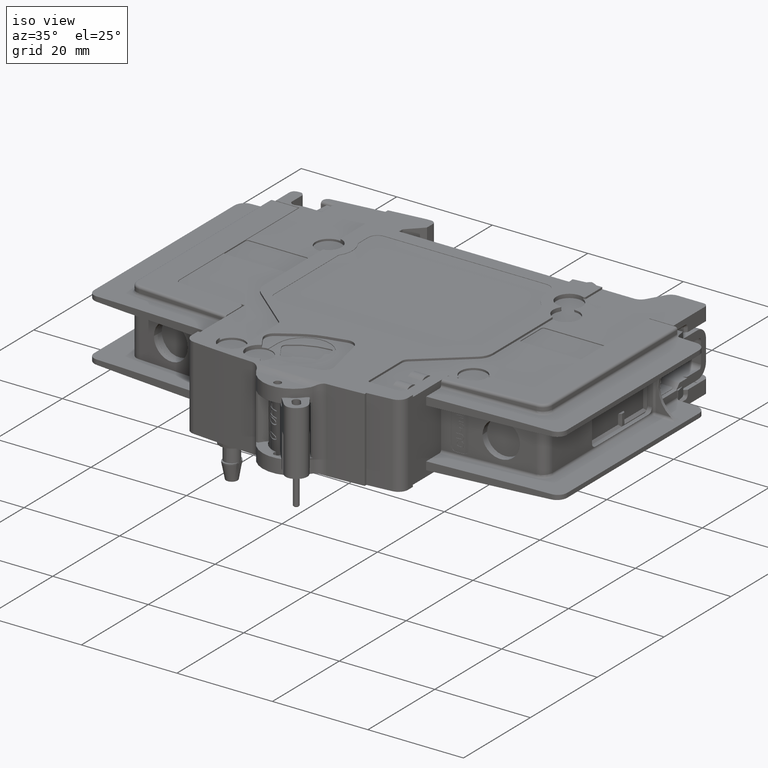
[diagram: clean part render]
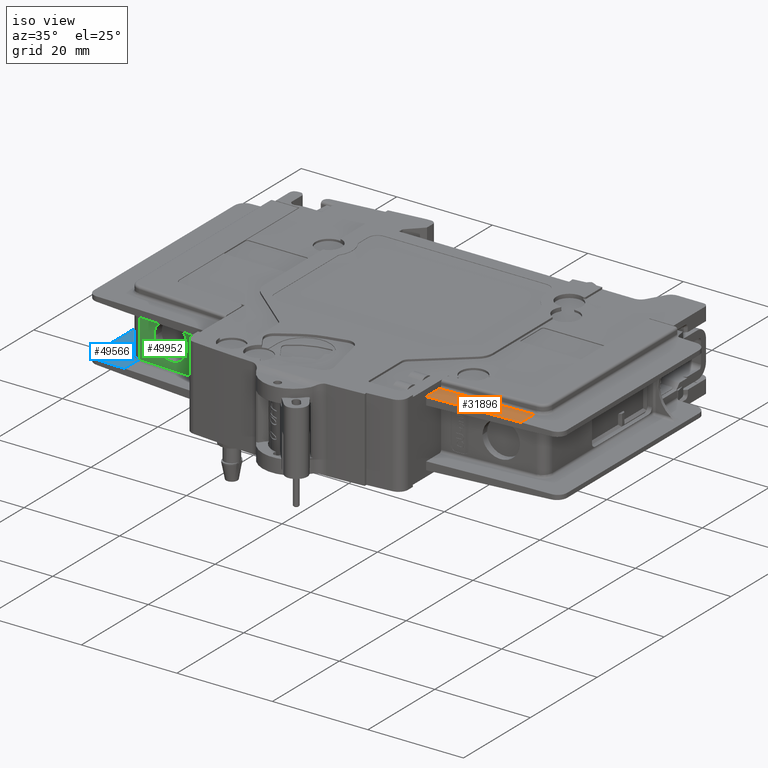
[diagram: same view with three faces highlighted in distinct colors, each labeled with its STEP entity id]
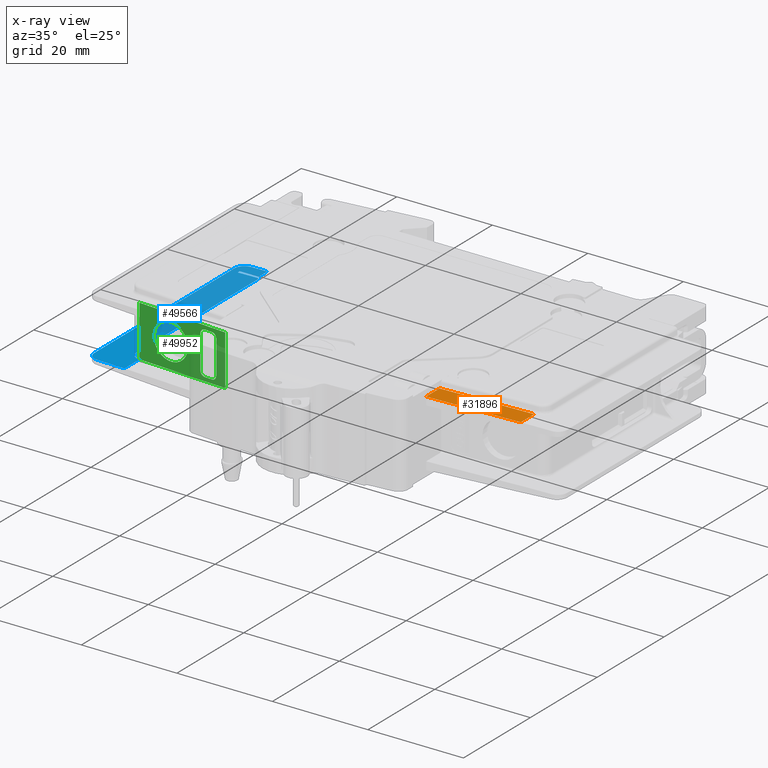
[diagram: x-ray of the same camera — body ghosted, the three highlighted faces saturated]
A machine part, iso view with three faces highlighted in distinct colors.
The next image is the same camera in x-ray (body ghosted, the three faces saturated) — at least one of them is partly hidden behind the body in this view.
Their STEP definitions:

[orange] entity #31896 — the highlighted planar face has unit normal (-0.0175, 0, -0.9998).
#2554=DIRECTION('',(0.E0,-1.E0,0.E0));
#2555=VECTOR('',#2554,4.010377787896E0);
#2556=CARTESIAN_POINT('',(2.26E1,-4.518065345338E1,6.969572727143E0));
#2557=LINE('',#2556,#2555);
#3039=DIRECTION('',(9.974128555599E-1,6.974590118078E-2,-1.740990615404E-2));
#3040=VECTOR('',#3039,1.894902386173E1);
#3041=CARTESIAN_POINT('',(2.26E1,-4.919103124128E1,6.969572727143E0));
#3042=LINE('',#3041,#3040);
#3051=CARTESIAN_POINT('',(2.26E1,-4.518065345338E1,6.969572727143E0));
#3071=DIRECTION('',(9.974122955988E-1,6.975391097545E-2,-1.740989637988E-2));
#3072=VECTOR('',#3071,1.894903449997E1);
#3073=CARTESIAN_POINT('',(2.26E1,-4.518065345338E1,6.969572727143E0));
#3074=LINE('',#3073,#3072);
#3117=DIRECTION('',(0.E0,-1.E0,0.E0));
#3118=VECTOR('',#3117,4.010530307746E0);
#3119=CARTESIAN_POINT('',(4.15E1,-4.385888418780E1,6.639672E0));
#3120=LINE('',#3119,#3118);
#26361=VERTEX_POINT('',#3051);
#26461=CARTESIAN_POINT('',(2.26E1,-4.919103124128E1,6.969572727143E0));
#26462=CARTESIAN_POINT('',(4.15E1,-4.786941449555E1,6.639672E0));
#26463=VERTEX_POINT('',#26461);
#26464=VERTEX_POINT('',#26462);
#26481=CARTESIAN_POINT('',(4.15E1,-4.385888418780E1,6.639672E0));
#26482=VERTEX_POINT('',#26481);
#31883=CARTESIAN_POINT('',(4.15E1,-4.135354215802E1,6.639672E0));
#31884=DIRECTION('',(-1.745240643728E-2,0.E0,-9.998476951564E-1));
#31885=DIRECTION('',(0.E0,1.E0,0.E0));
#31886=AXIS2_PLACEMENT_3D('',#31883,#31884,#31885);
#31887=PLANE('',#31886);
#31889=ORIENTED_EDGE('',*,*,#31888,.T.);
#31891=ORIENTED_EDGE('',*,*,#31890,.T.);
#31892=ORIENTED_EDGE('',*,*,#31872,.F.);
#31893=ORIENTED_EDGE('',*,*,#31345,.F.);
#31894=EDGE_LOOP('',(#31889,#31891,#31892,#31893));
#31895=FACE_OUTER_BOUND('',#31894,.F.);
#31345=EDGE_CURVE('',#26361,#26463,#2557,.T.);
#31872=EDGE_CURVE('',#26463,#26464,#3042,.T.);
#31888=EDGE_CURVE('',#26361,#26482,#3074,.T.);
#31890=EDGE_CURVE('',#26482,#26464,#3120,.T.);
#31896=ADVANCED_FACE('',(#31895),#31887,.F.);

[blue] entity #49566 — the highlighted planar face has unit normal (-0.0175, 0, 0.9998).
#14475=DIRECTION('',(9.998476951564E-1,0.E0,1.745240643728E-2));
#14476=VECTOR('',#14475,3.509260680618E0);
#14477=CARTESIAN_POINT('',(-4.75E1,-1.51E0,-5.465089870144E0));
#14478=LINE('',#14477,#14476);
#15496=CARTESIAN_POINT('',(-4.75E1,-1.51E0,-5.465089870144E0));
#15497=CARTESIAN_POINT('',(-4.754166349365E1,-1.51E0,-5.465817109130E0));
#15498=CARTESIAN_POINT('',(-4.762240180191E1,-1.512589073363E0,
-5.467226401543E0));
#15499=CARTESIAN_POINT('',(-4.777513361600E1,-1.526513354612E0,
-5.469892345275E0));
#15500=CARTESIAN_POINT('',(-4.795192627319E1,-1.558042967778E0,
-5.472978272585E0));
#15501=CARTESIAN_POINT('',(-4.814611932980E1,-1.613839371123E0,
-5.476367924997E0));
#15502=CARTESIAN_POINT('',(-4.832508187470E1,-1.684868606213E0,
-5.479491727838E0));
#15503=CARTESIAN_POINT('',(-4.849060380701E1,-1.769340501280E0,
-5.482380923913E0));
#15504=CARTESIAN_POINT('',(-4.869489893572E1,-1.898372974028E0,
-5.485946908649E0));
#15505=CARTESIAN_POINT('',(-4.892147874627E1,-2.088457050694E0,
-5.489901873954E0));
#15506=CARTESIAN_POINT('',(-4.911157490672E1,-2.315030334943E0,
-5.493220014777E0));
#15507=CARTESIAN_POINT('',(-4.924061922357E1,-2.519325082374E0,
-5.495472491706E0));
#15508=CARTESIAN_POINT('',(-4.932510075026E1,-2.684849727780E0,
-5.496947122240E0));
#15509=CARTESIAN_POINT('',(-4.939613993062E1,-2.863818767161E0,
-5.498187115746E0));
#15510=CARTESIAN_POINT('',(-4.945194592623E1,-3.058023311738E0,
-5.499161213022E0));
#15511=CARTESIAN_POINT('',(-4.948348232416E1,-3.234831310769E0,
-5.499711682896E0));
#15512=CARTESIAN_POINT('',(-4.949741014851E1,-3.387580725496E0,
-5.499954793974E0));
#15513=CARTESIAN_POINT('',(-4.95E1,-3.468330159832E0,-5.5E0));
#15514=CARTESIAN_POINT('',(-4.95E1,-3.51E0,-5.5E0));
#15516=DIRECTION('',(0.E0,-1.E0,0.E0));
#15517=VECTOR('',#15516,4.193496982772E1);
#15518=CARTESIAN_POINT('',(-4.95E1,-3.51E0,-5.5E0));
#15519=LINE('',#15518,#15517);
#15520=DIRECTION('',(-9.998476951564E-1,0.E0,-1.745240643728E-2));
#15521=VECTOR('',#15520,4.045256244814E0);
#15522=CARTESIAN_POINT('',(-4.4E1,-4.01E0,-5.403997142895E0));
#15523=LINE('',#15522,#15521);
#15524=DIRECTION('',(0.E0,1.E0,0.E0));
#15525=VECTOR('',#15524,6.E-1);
#15526=CARTESIAN_POINT('',(-4.804464013269E1,-4.61E0,-5.474596599022E0));
#15527=LINE('',#15526,#15525);
#15528=DIRECTION('',(-9.998476951564E-1,0.E0,-1.745240643728E-2));
#15529=VECTOR('',#15528,4.045256244814E0);
#15530=CARTESIAN_POINT('',(-4.4E1,-4.61E0,-5.403997142895E0));
#15531=LINE('',#15530,#15529);
#15532=DIRECTION('',(0.E0,-1.E0,0.E0));
#15533=VECTOR('',#15532,4.513430439446E0);
#15534=CARTESIAN_POINT('',(-4.15E1,-4.335598405610E1,-5.360359480574E0));
#15535=LINE('',#15534,#15533);
#15536=CARTESIAN_POINT('',(-4.95E1,-4.544496982772E1,-5.5E0));
#15537=CARTESIAN_POINT('',(-4.95E1,-4.552268530811E1,-5.5E0));
#15538=CARTESIAN_POINT('',(-4.949106921372E1,-4.566978681885E1,
-5.499844112546E0));
#15539=CARTESIAN_POINT('',(-4.945733343564E1,-4.587146901163E1,
-5.499255252349E0));
#15540=CARTESIAN_POINT('',(-4.940694862511E1,-4.605762320054E1,
-5.498375782210E0));
#15541=CARTESIAN_POINT('',(-4.934227064678E1,-4.623044662289E1,
-5.497246823898E0));
#15542=CARTESIAN_POINT('',(-4.926484240620E1,-4.639137829586E1,
-5.495895308932E0));
#15543=CARTESIAN_POINT('',(-4.914594504498E1,-4.659134856709E1,
-5.493819947772E0));
#15544=CARTESIAN_POINT('',(-4.896970285809E1,-4.681555068970E1,
-5.490743628957E0));
#15545=CARTESIAN_POINT('',(-4.875833449096E1,-4.700699178165E1,
-5.487054180385E0));
#15546=CARTESIAN_POINT('',(-4.856714476759E1,-4.713953734923E1,
-5.483716951350E0));
#15547=CARTESIAN_POINT('',(-4.841200883244E1,-4.722799361646E1,
-5.481009043529E0));
#15548=CARTESIAN_POINT('',(-4.824412437250E1,-4.730455975478E1,
-5.478078609380E0));
#15549=CARTESIAN_POINT('',(-4.806194936573E1,-4.736779757104E1,
-5.474898732809E0));
#15550=CARTESIAN_POINT('',(-4.786312938463E1,-4.741551116831E1,
-5.471428317130E0));
#15551=CARTESIAN_POINT('',(-4.771702736670E1,-4.743467759203E1,
-5.468878096921E0));
#15552=CARTESIAN_POINT('',(-4.763951294749E1,-4.744009792824E1,
-5.467525077700E0));
#15578=CARTESIAN_POINT('',(-4.399127379678E1,-4.009923847578E0,
-5.403844826451E0));
#15580=DIRECTION('',(0.E0,1.E0,0.E0));
#15581=VECTOR('',#15580,2.499923847578E0);
#15582=CARTESIAN_POINT('',(-4.399127379678E1,-4.009923847578E0,
-5.403844826451E0));
#15583=LINE('',#15582,#15581);
#15914=CARTESIAN_POINT('',(-4.15E1,-4.335598405610E1,-5.360359480574E0));
#15997=CARTESIAN_POINT('',(-4.15E1,-4.335354215802E1,-5.360359480574E0));
#15998=CARTESIAN_POINT('',(-4.154166349365E1,-4.335354215802E1,
-5.361086719561E0));
#15999=CARTESIAN_POINT('',(-4.162240180191E1,-4.335095308466E1,
-5.362496011974E0));
#16000=CARTESIAN_POINT('',(-4.177513361600E1,-4.333702880341E1,
-5.365161955705E0));
#16001=CARTESIAN_POINT('',(-4.195192627319E1,-4.330549919024E1,
-5.368247883016E0));
#16002=CARTESIAN_POINT('',(-4.214611932980E1,-4.324970278690E1,
-5.371637535427E0));
#16003=CARTESIAN_POINT('',(-4.232508187470E1,-4.317867355181E1,
-5.374761338268E0));
#16004=CARTESIAN_POINT('',(-4.249060380701E1,-4.309420165674E1,
-5.377650534344E0));
#16005=CARTESIAN_POINT('',(-4.269489893572E1,-4.296516918399E1,
-5.381216519080E0));
#16006=CARTESIAN_POINT('',(-4.292147874627E1,-4.277508510733E1,
-5.385171484385E0));
#16007=CARTESIAN_POINT('',(-4.311157490672E1,-4.254851182308E1,
-5.388489625208E0));
#16008=CARTESIAN_POINT('',(-4.324061922357E1,-4.234421707565E1,
-5.390742102137E0));
#16009=CARTESIAN_POINT('',(-4.332510075026E1,-4.217869243024E1,
-5.392216732671E0));
#16010=CARTESIAN_POINT('',(-4.339613993062E1,-4.199972339086E1,
-5.393456726176E0));
#16011=CARTESIAN_POINT('',(-4.345194592623E1,-4.180551884628E1,
-5.394430823453E0));
#16012=CARTESIAN_POINT('',(-4.348348232416E1,-4.162871084725E1,
-5.394981293326E0));
#16013=CARTESIAN_POINT('',(-4.349741014851E1,-4.147596143252E1,
-5.395224404405E0));
#16014=CARTESIAN_POINT('',(-4.35E1,-4.139521199819E1,-5.395269610431E0));
#16015=CARTESIAN_POINT('',(-4.35E1,-4.135354215802E1,-5.395269610431E0));
#16021=DIRECTION('',(0.E0,1.E0,0.E0));
#16022=VECTOR('',#16021,3.624354215802E1);
#16023=CARTESIAN_POINT('',(-4.35E1,-4.135354215802E1,-5.395269610431E0));
#16024=LINE('',#16023,#16022);
#16045=CARTESIAN_POINT('',(-4.35E1,-5.11E0,-5.395269610431E0));
#16046=CARTESIAN_POINT('',(-4.35E1,-5.089165079916E0,-5.395269610431E0));
#16047=CARTESIAN_POINT('',(-4.350255829792E1,-5.050053927369E0,
-5.395314265687E0));
#16048=CARTESIAN_POINT('',(-4.351201219866E1,-4.997004507947E0,
-5.395479284138E0));
#16049=CARTESIAN_POINT('',(-4.352596459763E1,-4.948454272013E0,
-5.395722824168E0));
#16050=CARTESIAN_POINT('',(-4.354964888222E1,-4.888802484050E0,
-5.396136234893E0));
#16051=CARTESIAN_POINT('',(-4.358761072483E1,-4.822595508893E0,
-5.396798861321E0));
#16052=CARTESIAN_POINT('',(-4.364462568452E1,-4.754609633053E0,
-5.397794061144E0));
#16053=CARTESIAN_POINT('',(-4.371261351272E1,-4.697598297212E0,
-5.398980793100E0));
#16054=CARTESIAN_POINT('',(-4.377882012237E1,-4.659640391564E0,
-5.400136433770E0));
#16055=CARTESIAN_POINT('',(-4.383846974773E1,-4.635959422898E0,
-5.401177621854E0));
#16056=CARTESIAN_POINT('',(-4.388701711359E1,-4.622009423629E0,
-5.402025019277E0));
#16057=CARTESIAN_POINT('',(-4.394006192114E1,-4.612557551137E0,
-5.402950919837E0));
#16058=CARTESIAN_POINT('',(-4.397916825318E1,-4.61E0,-5.403633523401E0));
#16059=CARTESIAN_POINT('',(-4.4E1,-4.61E0,-5.403997142895E0));
#16100=CARTESIAN_POINT('',(-4.4E1,-4.01E0,-5.403997142895E0));
#16101=CARTESIAN_POINT('',(-4.399709104414E1,-4.01E0,-5.403946366881E0));
#16102=CARTESIAN_POINT('',(-4.399418230973E1,-4.009974615861E0,
-5.403895594733E0));
#16103=CARTESIAN_POINT('',(-4.399127379678E1,-4.009923847578E0,
-5.403844826451E0));
#16767=DIRECTION('',(-9.974128555599E-1,6.974590118078E-2,-1.740990615404E-2));
#16768=VECTOR('',#16767,6.155437954569E0);
#16769=CARTESIAN_POINT('',(-4.15E1,-4.786941449555E1,-5.360359480574E0));
#16770=LINE('',#16769,#16768);
#27532=CARTESIAN_POINT('',(-4.399127379678E1,-1.51E0,-5.403844826451E0));
#27534=VERTEX_POINT('',#27532);
#28174=VERTEX_POINT('',#15536);
#28175=VERTEX_POINT('',#15552);
#28176=CARTESIAN_POINT('',(-4.35E1,-4.135354215802E1,-5.395269610431E0));
#28178=VERTEX_POINT('',#28176);
#28183=CARTESIAN_POINT('',(-4.95E1,-3.51E0,-5.5E0));
#28184=VERTEX_POINT('',#28183);
#28185=CARTESIAN_POINT('',(-4.75E1,-1.51E0,-5.465089870144E0));
#28186=VERTEX_POINT('',#28185);
#28191=CARTESIAN_POINT('',(-4.804464013269E1,-4.61E0,-5.474596599022E0));
#28192=CARTESIAN_POINT('',(-4.804464013269E1,-4.01E0,-5.474596599022E0));
#28193=VERTEX_POINT('',#28191);
#28194=VERTEX_POINT('',#28192);
#28196=CARTESIAN_POINT('',(-4.4E1,-4.01E0,-5.403997142895E0));
#28198=VERTEX_POINT('',#28196);
#28199=CARTESIAN_POINT('',(-4.35E1,-5.11E0,-5.395269610431E0));
#28201=VERTEX_POINT('',#28199);
#28203=CARTESIAN_POINT('',(-4.4E1,-4.61E0,-5.403997142895E0));
#28205=VERTEX_POINT('',#28203);
#28215=CARTESIAN_POINT('',(-4.15E1,-4.786941449555E1,-5.360359480574E0));
#28216=VERTEX_POINT('',#28215);
#28224=VERTEX_POINT('',#15578);
#28225=VERTEX_POINT('',#15914);
#49534=CARTESIAN_POINT('',(-4.95E1,-8.226180025307E-1,-5.5E0));
#49535=DIRECTION('',(-1.745240643728E-2,0.E0,9.998476951564E-1));
#49536=DIRECTION('',(0.E0,1.E0,0.E0));
#49537=AXIS2_PLACEMENT_3D('',#49534,#49535,#49536);
#49538=PLANE('',#49537);
#49540=ORIENTED_EDGE('',*,*,#49539,.F.);
#49542=ORIENTED_EDGE('',*,*,#49541,.F.);
#49544=ORIENTED_EDGE('',*,*,#49543,.T.);
#49546=ORIENTED_EDGE('',*,*,#49545,.F.);
#49548=ORIENTED_EDGE('',*,*,#49547,.F.);
#49550=ORIENTED_EDGE('',*,*,#49549,.F.);
#49552=ORIENTED_EDGE('',*,*,#49551,.F.);
#49554=ORIENTED_EDGE('',*,*,#49553,.F.);
#49556=ORIENTED_EDGE('',*,*,#49555,.T.);
#49558=ORIENTED_EDGE('',*,*,#49557,.T.);
#49560=ORIENTED_EDGE('',*,*,#49559,.F.);
#49561=ORIENTED_EDGE('',*,*,#49526,.F.);
#49562=ORIENTED_EDGE('',*,*,#49515,.F.);
#49563=ORIENTED_EDGE('',*,*,#47937,.T.);
#49564=EDGE_LOOP('',(#49540,#49542,#49544,#49546,#49548,#49550,#49552,#49554,
#49556,#49558,#49560,#49561,#49562,#49563));
#49565=FACE_OUTER_BOUND('',#49564,.F.);
#15515=B_SPLINE_CURVE_WITH_KNOTS('',3,(#15496,#15497,#15498,#15499,#15500,
#15501,#15502,#15503,#15504,#15505,#15506,#15507,#15508,#15509,#15510,#15511,
#15512,#15513,#15514),.UNSPECIFIED.,.F.,.F.,(4,1,1,1,1,1,1,1,1,1,1,1,1,1,1,1,4),
(0.E0,3.125E-2,6.25E-2,1.25E-1,1.875E-1,2.5E-1,3.125E-1,3.75E-1,5.E-1,6.25E-1,
6.875E-1,7.5E-1,8.125E-1,8.75E-1,9.375E-1,9.6875E-1,1.E0),.UNSPECIFIED.);
#15553=B_SPLINE_CURVE_WITH_KNOTS('',3,(#15536,#15537,#15538,#15539,#15540,
#15541,#15542,#15543,#15544,#15545,#15546,#15547,#15548,#15549,#15550,#15551,
#15552),.UNSPECIFIED.,.F.,.F.,(4,1,1,1,1,1,1,1,1,1,1,1,1,1,4),(0.E0,6.25E-2,
1.25E-1,1.875E-1,2.5E-1,3.125E-1,3.75E-1,5.E-1,6.25E-1,6.875E-1,7.5E-1,8.125E-1,
8.75E-1,9.375E-1,1.E0),.UNSPECIFIED.);
#16016=B_SPLINE_CURVE_WITH_KNOTS('',3,(#15997,#15998,#15999,#16000,#16001,
#16002,#16003,#16004,#16005,#16006,#16007,#16008,#16009,#16010,#16011,#16012,
#16013,#16014,#16015),.UNSPECIFIED.,.F.,.F.,(4,1,1,1,1,1,1,1,1,1,1,1,1,1,1,1,4),
(0.E0,3.125E-2,6.25E-2,1.25E-1,1.875E-1,2.5E-1,3.125E-1,3.75E-1,5.E-1,6.25E-1,
6.875E-1,7.5E-1,8.125E-1,8.75E-1,9.375E-1,9.6875E-1,1.E0),.UNSPECIFIED.);
#16060=B_SPLINE_CURVE_WITH_KNOTS('',3,(#16045,#16046,#16047,#16048,#16049,
#16050,#16051,#16052,#16053,#16054,#16055,#16056,#16057,#16058,#16059),
.UNSPECIFIED.,.F.,.F.,(4,1,1,1,1,1,1,1,1,1,1,1,4),(0.E0,6.25E-2,1.25E-1,
1.875E-1,2.5E-1,3.75E-1,5.E-1,6.25E-1,7.5E-1,8.125E-1,8.75E-1,9.375E-1,1.E0),
.UNSPECIFIED.);
#16104=B_SPLINE_CURVE_WITH_KNOTS('',3,(#16100,#16101,#16102,#16103),
.UNSPECIFIED.,.F.,.F.,(4,4),(0.E0,1.E0),.UNSPECIFIED.);
#47937=EDGE_CURVE('',#28186,#27534,#14478,.T.);
#49515=EDGE_CURVE('',#28186,#28184,#15515,.T.);
#49526=EDGE_CURVE('',#28184,#28174,#15519,.T.);
#49539=EDGE_CURVE('',#28224,#27534,#15583,.T.);
#49541=EDGE_CURVE('',#28198,#28224,#16104,.T.);
#49543=EDGE_CURVE('',#28198,#28194,#15523,.T.);
#49545=EDGE_CURVE('',#28193,#28194,#15527,.T.);
#49547=EDGE_CURVE('',#28205,#28193,#15531,.T.);
#49549=EDGE_CURVE('',#28201,#28205,#16060,.T.);
#49551=EDGE_CURVE('',#28178,#28201,#16024,.T.);
#49553=EDGE_CURVE('',#28225,#28178,#16016,.T.);
#49555=EDGE_CURVE('',#28225,#28216,#15535,.T.);
#49557=EDGE_CURVE('',#28216,#28175,#16770,.T.);
#49559=EDGE_CURVE('',#28174,#28175,#15553,.T.);
#49566=ADVANCED_FACE('',(#49565),#49538,.T.);

[green] entity #49952 — the highlighted planar face has unit normal (0.0698, 0.9976, 0).
#15914=CARTESIAN_POINT('',(-4.15E1,-4.335598405610E1,-5.360359480574E0));
#15915=CARTESIAN_POINT('',(-4.15E1,-4.335598405610E1,-1.786786493525E0));
#15916=CARTESIAN_POINT('',(-4.15E1,-4.335598405610E1,1.786786493525E0));
#15917=CARTESIAN_POINT('',(-4.15E1,-4.335598405610E1,5.360359480574E0));
#15919=DIRECTION('',(-9.975456237186E-1,6.988406908375E-2,4.352641515940E-3));
#15920=VECTOR('',#15919,1.894650184474E1);
#15921=CARTESIAN_POINT('',(-2.26E1,-4.468004269992E1,5.277892150063E0));
#15922=LINE('',#15921,#15920);
#15923=DIRECTION('',(0.E0,0.E0,-1.E0));
#15924=VECTOR('',#15923,1.055578430013E1);
#15925=CARTESIAN_POINT('',(-2.26E1,-4.468004269992E1,5.277892150063E0));
#15926=LINE('',#15925,#15924);
#15927=DIRECTION('',(9.975456237186E-1,-6.988406908375E-2,4.352641515939E-3));
#15928=VECTOR('',#15927,1.894650184474E1);
#15929=CARTESIAN_POINT('',(-4.15E1,-4.335598405610E1,-5.360359480574E0));
#15930=LINE('',#15929,#15928);
#15931=CARTESIAN_POINT('',(-3.458609586815E1,-4.384189322821E1,0.E0));
#15932=DIRECTION('',(6.975647374412E-2,9.975640502598E-1,0.E0));
#15933=DIRECTION('',(9.975640502598E-1,-6.975647374412E-2,0.E0));
#15934=AXIS2_PLACEMENT_3D('',#15931,#15932,#15933);
#15936=CARTESIAN_POINT('',(-3.458609586815E1,-4.384189322821E1,0.E0));
#15937=DIRECTION('',(6.975647374412E-2,9.975640502598E-1,0.E0));
#15938=DIRECTION('',(-9.975640502598E-1,6.975647374413E-2,0.E0));
#15939=AXIS2_PLACEMENT_3D('',#15936,#15937,#15938);
#15941=CARTESIAN_POINT('',(-2.708903822617E1,-4.436613856807E1,-3.5E0));
#15942=DIRECTION('',(-6.975647374412E-2,-9.975640502598E-1,0.E0));
#15943=DIRECTION('',(-9.975640502598E-1,6.975647374413E-2,0.E0));
#15944=AXIS2_PLACEMENT_3D('',#15941,#15942,#15943);
#15946=DIRECTION('',(9.975640502598E-1,-6.975647374413E-2,0.E0));
#15947=VECTOR('',#15946,1.5E0);
#15948=CARTESIAN_POINT('',(-2.708903822617E1,-4.436613856807E1,-4.5E0));
#15949=LINE('',#15948,#15947);
#15950=CARTESIAN_POINT('',(-2.559269215078E1,-4.447077327868E1,-3.5E0));
#15951=DIRECTION('',(-6.975647374412E-2,-9.975640502598E-1,0.E0));
#15952=DIRECTION('',(0.E0,0.E0,-1.E0));
#15953=AXIS2_PLACEMENT_3D('',#15950,#15951,#15952);
#15955=DIRECTION('',(0.E0,0.E0,1.E0));
#15956=VECTOR('',#15955,7.E0);
#15957=CARTESIAN_POINT('',(-2.459512810052E1,-4.454052975243E1,-3.5E0));
#15958=LINE('',#15957,#15956);
#15959=CARTESIAN_POINT('',(-2.559269215078E1,-4.447077327868E1,3.5E0));
#15960=DIRECTION('',(-6.975647374412E-2,-9.975640502598E-1,0.E0));
#15961=DIRECTION('',(9.975640502598E-1,-6.975647374413E-2,0.E0));
#15962=AXIS2_PLACEMENT_3D('',#15959,#15960,#15961);
#15964=DIRECTION('',(-9.975640502598E-1,6.975647374413E-2,0.E0));
#15965=VECTOR('',#15964,1.5E0);
#15966=CARTESIAN_POINT('',(-2.559269215078E1,-4.447077327868E1,4.5E0));
#15967=LINE('',#15966,#15965);
#15968=CARTESIAN_POINT('',(-2.708903822617E1,-4.436613856807E1,3.5E0));
#15969=DIRECTION('',(-6.975647374412E-2,-9.975640502598E-1,0.E0));
#15970=DIRECTION('',(0.E0,0.E0,1.E0));
#15971=AXIS2_PLACEMENT_3D('',#15968,#15969,#15970);
#15973=DIRECTION('',(0.E0,0.E0,-1.E0));
#15974=VECTOR('',#15973,7.000000000192E0);
#15975=CARTESIAN_POINT('',(-2.808660227643E1,-4.429638209432E1,
3.500000000096E0));
#15976=LINE('',#15975,#15974);
#27364=CARTESIAN_POINT('',(-3.084523067968E1,-4.410348000475E1,0.E0));
#27366=VERTEX_POINT('',#27364);
#27368=CARTESIAN_POINT('',(-3.832696105663E1,-4.358030645167E1,0.E0));
#27370=VERTEX_POINT('',#27368);
#27548=CARTESIAN_POINT('',(-2.459512810052E1,-4.454052975243E1,3.5E0));
#27549=CARTESIAN_POINT('',(-2.559269215078E1,-4.447077327868E1,4.5E0));
#27550=VERTEX_POINT('',#27548);
#27551=VERTEX_POINT('',#27549);
#27552=CARTESIAN_POINT('',(-2.708903822617E1,-4.436613856807E1,4.5E0));
#27553=VERTEX_POINT('',#27552);
#27554=CARTESIAN_POINT('',(-2.708903822617E1,-4.436613856807E1,-4.5E0));
#27555=CARTESIAN_POINT('',(-2.559269215078E1,-4.447077327868E1,-4.5E0));
#27556=VERTEX_POINT('',#27554);
#27557=VERTEX_POINT('',#27555);
#27558=CARTESIAN_POINT('',(-2.459512810052E1,-4.454052975243E1,-3.5E0));
#27559=VERTEX_POINT('',#27558);
#28208=CARTESIAN_POINT('',(-2.26E1,-4.468004269992E1,-5.277892150063E0));
#28210=VERTEX_POINT('',#28208);
#28212=CARTESIAN_POINT('',(-2.26E1,-4.468004269992E1,5.277892150063E0));
#28214=VERTEX_POINT('',#28212);
#28225=VERTEX_POINT('',#15914);
#28226=VERTEX_POINT('',#15917);
#28227=CARTESIAN_POINT('',(-2.808660227643E1,-4.429638209432E1,
3.500000000096E0));
#28228=CARTESIAN_POINT('',(-2.808660227643E1,-4.429638209432E1,
-3.500000000096E0));
#28229=VERTEX_POINT('',#28227);
#28230=VERTEX_POINT('',#28228);
#49915=CARTESIAN_POINT('',(-2.26E1,-4.468004269992E1,5.5E0));
#49916=DIRECTION('',(6.975647374412E-2,9.975640502598E-1,0.E0));
#49917=DIRECTION('',(-9.975640502598E-1,6.975647374412E-2,0.E0));
#49918=AXIS2_PLACEMENT_3D('',#49915,#49916,#49917);
#49919=PLANE('',#49918);
#49921=ORIENTED_EDGE('',*,*,#49920,.T.);
#49922=ORIENTED_EDGE('',*,*,#49907,.F.);
#49923=ORIENTED_EDGE('',*,*,#49345,.T.);
#49925=ORIENTED_EDGE('',*,*,#49924,.F.);
#49926=EDGE_LOOP('',(#49921,#49922,#49923,#49925));
#49927=FACE_OUTER_BOUND('',#49926,.F.);
#49929=ORIENTED_EDGE('',*,*,#49928,.F.);
#49931=ORIENTED_EDGE('',*,*,#49930,.F.);
#49932=EDGE_LOOP('',(#49929,#49931));
#49933=FACE_BOUND('',#49932,.F.);
#49935=ORIENTED_EDGE('',*,*,#49934,.T.);
#49937=ORIENTED_EDGE('',*,*,#49936,.T.);
#49939=ORIENTED_EDGE('',*,*,#49938,.T.);
#49941=ORIENTED_EDGE('',*,*,#49940,.T.);
#49943=ORIENTED_EDGE('',*,*,#49942,.T.);
#49945=ORIENTED_EDGE('',*,*,#49944,.T.);
#49947=ORIENTED_EDGE('',*,*,#49946,.T.);
#49949=ORIENTED_EDGE('',*,*,#49948,.T.);
#49950=EDGE_LOOP('',(#49935,#49937,#49939,#49941,#49943,#49945,#49947,#49949));
#49951=FACE_BOUND('',#49950,.F.);
#15918=B_SPLINE_CURVE_WITH_KNOTS('',3,(#15914,#15915,#15916,#15917),
.UNSPECIFIED.,.F.,.F.,(4,4),(0.E0,1.E0),.UNSPECIFIED.);
#15935=CIRCLE('',#15934,3.75E0);
#15940=CIRCLE('',#15939,3.75E0);
#15945=CIRCLE('',#15944,1.E0);
#15954=CIRCLE('',#15953,1.E0);
#15963=CIRCLE('',#15962,1.E0);
#15972=CIRCLE('',#15971,1.E0);
#49345=EDGE_CURVE('',#28214,#28210,#15926,.T.);
#49907=EDGE_CURVE('',#28214,#28226,#15922,.T.);
#49920=EDGE_CURVE('',#28225,#28226,#15918,.T.);
#49924=EDGE_CURVE('',#28225,#28210,#15930,.T.);
#49928=EDGE_CURVE('',#27366,#27370,#15935,.T.);
#49930=EDGE_CURVE('',#27370,#27366,#15940,.T.);
#49934=EDGE_CURVE('',#28230,#27556,#15945,.T.);
#49936=EDGE_CURVE('',#27556,#27557,#15949,.T.);
#49938=EDGE_CURVE('',#27557,#27559,#15954,.T.);
#49940=EDGE_CURVE('',#27559,#27550,#15958,.T.);
#49942=EDGE_CURVE('',#27550,#27551,#15963,.T.);
#49944=EDGE_CURVE('',#27551,#27553,#15967,.T.);
#49946=EDGE_CURVE('',#27553,#28229,#15972,.T.);
#49948=EDGE_CURVE('',#28229,#28230,#15976,.T.);
#49952=ADVANCED_FACE('',(#49927,#49933,#49951),#49919,.F.);